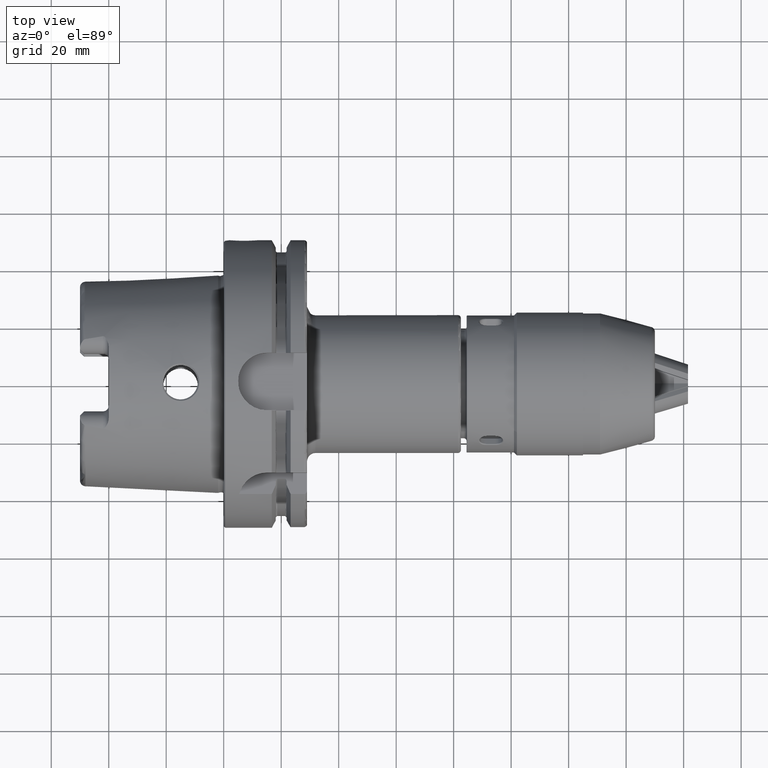
[diagram: clean part render]
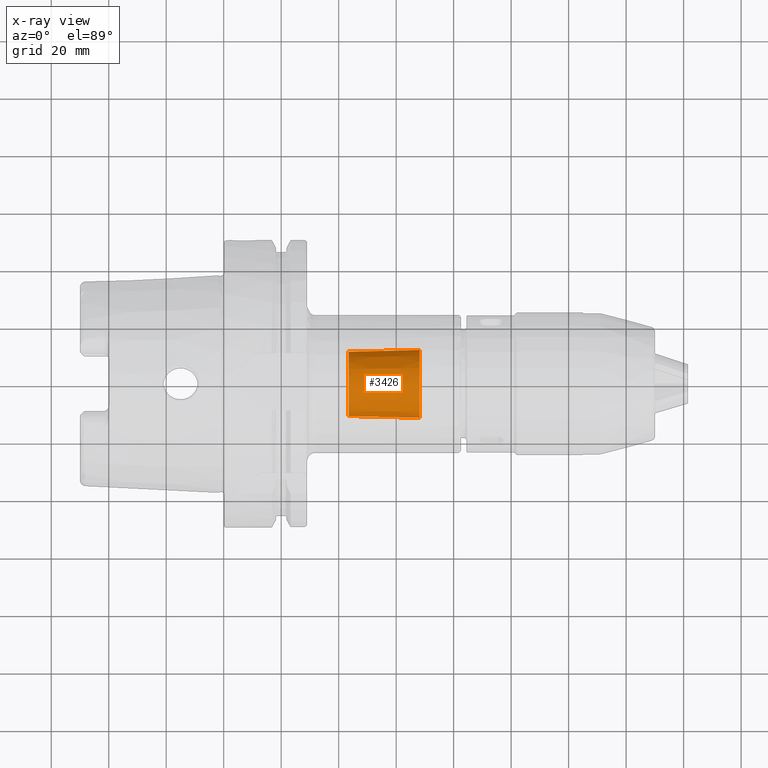
[diagram: x-ray — body ghosted, one internal face saturated and labeled with its STEP entity id]
A machine part, top view, then the same camera in x-ray: the body is ghosted and one INTERNAL B-rep face — a face not visible from any outside direction — is saturated and labeled: STEP entity #3426.
In plain terms, the highlighted conical surface has half-angle 1.438 deg.
Its self-contained STEP definition (entity closure, byte-faithful):
#181=CONICAL_SURFACE('',#3941,11.9000000000001,0.0250939949193175);
#400=LINE('',#6655,#628);
#628=VECTOR('',#4717,11.9000000000001);
#927=FACE_OUTER_BOUND('',#1145,.T.);
#1145=EDGE_LOOP('',(#2878,#2879,#2880,#2881,#2882));
#1369=CIRCLE('',#3938,11.2794184156803);
#1372=CIRCLE('',#3942,11.9000000000001);
#1373=CIRCLE('',#3943,11.9000000000001);
#1625=VERTEX_POINT('',#6645);
#1627=VERTEX_POINT('',#6651);
#1628=VERTEX_POINT('',#6652);
#2060=EDGE_CURVE('',#1625,#1625,#1369,.T.);
#2063=EDGE_CURVE('',#1627,#1628,#1372,.T.);
#2064=EDGE_CURVE('',#1628,#1627,#1373,.T.);
#2065=EDGE_CURVE('',#1628,#1625,#400,.T.);
#2878=ORIENTED_EDGE('',*,*,#2063,.F.);
#2879=ORIENTED_EDGE('',*,*,#2064,.F.);
#2880=ORIENTED_EDGE('',*,*,#2065,.T.);
#2881=ORIENTED_EDGE('',*,*,#2060,.T.);
#2882=ORIENTED_EDGE('',*,*,#2065,.F.);
#3426=ADVANCED_FACE('',(#927),#181,.T.);
#3938=AXIS2_PLACEMENT_3D('',#6646,#4705,#4706);
#3941=AXIS2_PLACEMENT_3D('',#6650,#4711,#4712);
#3942=AXIS2_PLACEMENT_3D('',#6653,#4713,#4714);
#3943=AXIS2_PLACEMENT_3D('',#6654,#4715,#4716);
#4705=DIRECTION('center_axis',(-8.12375184424464E-19,-1.,-2.26797510251041E-30));
#4706=DIRECTION('ref_axis',(1.,-8.12375184424464E-19,1.16177533467452E-31));
#4711=DIRECTION('center_axis',(-8.12375184424464E-19,-1.,-2.26797510251041E-30));
#4712=DIRECTION('ref_axis',(1.,-8.12375184424464E-19,1.16177533467453E-31));
#4713=DIRECTION('center_axis',(-8.12375184424464E-19,-1.,-2.26797510251041E-30));
#4714=DIRECTION('ref_axis',(1.,-8.12375184424464E-19,1.16177533467453E-31));
#4715=DIRECTION('center_axis',(-8.12375184424464E-19,-1.,-2.26797510251041E-30));
#4716=DIRECTION('ref_axis',(1.,-8.12375184424464E-19,1.16177533467453E-31));
#4717=DIRECTION('',(0.0250913613515825,0.999685162231352,3.07280553654878E-18));
#6645=CARTESIAN_POINT('',(-11.2794184156803,67.0250913613516,-1.38133036590066E-15));
#6646=CARTESIAN_POINT('Origin',(5.44495209557445E-17,67.0250913613516,0.));
#6650=CARTESIAN_POINT('Origin',(3.4363470301155E-17,42.3000000000003,2.49600520792586E-28));
#6651=CARTESIAN_POINT('',(11.9000000000001,42.3000000000003,1.45732969098565E-15));
#6652=CARTESIAN_POINT('',(-11.9000000000001,42.3000000000003,-1.45732969098512E-15));
#6653=CARTESIAN_POINT('Origin',(3.4363470301155E-17,42.3000000000003,2.49600520792586E-28));
#6654=CARTESIAN_POINT('Origin',(3.4363470301155E-17,42.3000000000003,2.49600520792586E-28));
#6655=CARTESIAN_POINT('',(-11.9000000000001,42.3000000000003,-1.45732969098512E-15));